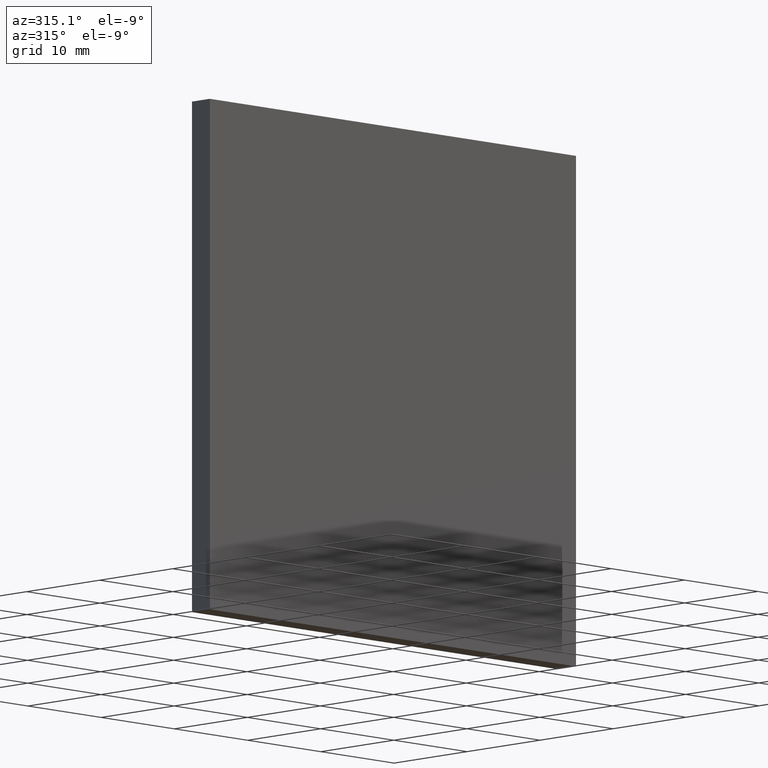
[diagram: clean part render]
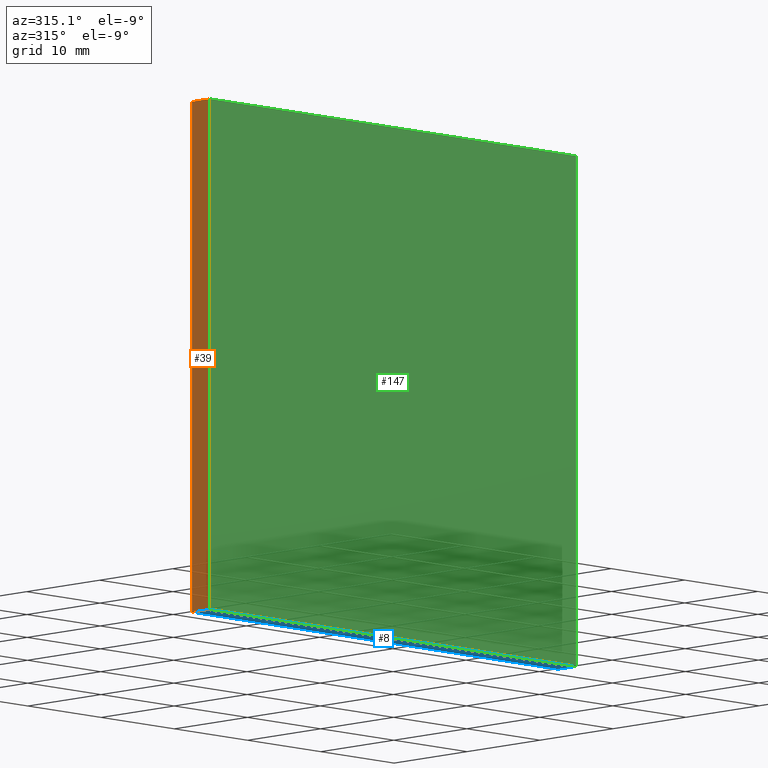
[diagram: same view with three faces highlighted in distinct colors, each labeled with its STEP entity id]
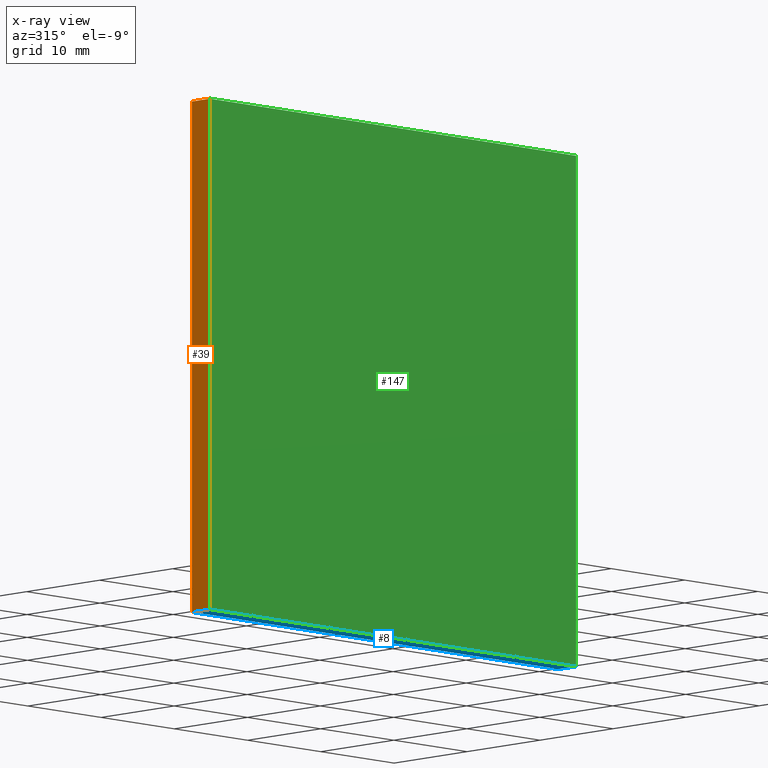
[diagram: x-ray of the same camera — body ghosted, the three highlighted faces saturated]
A machine part, auxiliary view with three faces highlighted in distinct colors.
The next image is the same camera in x-ray (body ghosted, the three faces saturated) — at least one of them is partly hidden behind the body in this view.
Their STEP definitions:

[orange] entity #39 — the highlighted planar face has unit normal (1, -0, 0).
#5 = LINE ( 'NONE', #97, #141 ) ;
#10 = CARTESIAN_POINT ( 'NONE',  ( -25.00000000000000000, 2.439999999999999900, -25.00000000000000000 ) ) ;
#16 = ORIENTED_EDGE ( 'NONE', *, *, #191, .F. ) ;
#24 = DIRECTION ( 'NONE',  ( -0.0000000000000000000, -1.000000000000000000, -0.0000000000000000000 ) ) ;
#25 = DIRECTION ( 'NONE',  ( -0.0000000000000000000, -1.000000000000000000, -0.0000000000000000000 ) ) ;
#27 = CARTESIAN_POINT ( 'NONE',  ( -25.00000000000000000, 0.0000000000000000000, -25.00000000000000000 ) ) ;
#31 = CARTESIAN_POINT ( 'NONE',  ( -25.00000000000000000, 2.439999999999999900, 25.00000000000000000 ) ) ;
#39 = ADVANCED_FACE ( 'NONE', ( #132 ), #143, .F. ) ;
#52 = ORIENTED_EDGE ( 'NONE', *, *, #166, .T. ) ;
#53 = CARTESIAN_POINT ( 'NONE',  ( -25.00000000000000000, 2.439999999999999900, 25.00000000000000000 ) ) ;
#68 = DIRECTION ( 'NONE',  ( -0.0000000000000000000, -0.0000000000000000000, 1.000000000000000000 ) ) ;
#71 = DIRECTION ( 'NONE',  ( 0.0000000000000000000, 0.0000000000000000000, -1.000000000000000000 ) ) ;
#75 = VERTEX_POINT ( 'NONE', #144 ) ;
#84 = DIRECTION ( 'NONE',  ( 1.000000000000000000, -0.0000000000000000000, 0.0000000000000000000 ) ) ;
#94 = VERTEX_POINT ( 'NONE', #10 ) ;
#95 = VERTEX_POINT ( 'NONE', #27 ) ;
#97 = CARTESIAN_POINT ( 'NONE',  ( -25.00000000000000000, 0.0000000000000000000, 25.00000000000000000 ) ) ;
#100 = CARTESIAN_POINT ( 'NONE',  ( -25.00000000000000000, 2.439999999999999900, -25.00000000000000000 ) ) ;
#102 = VECTOR ( 'NONE', #199, 1000.000000000000000 ) ;
#107 = AXIS2_PLACEMENT_3D ( 'NONE', #31, #84, #71 ) ;
#113 = ORIENTED_EDGE ( 'NONE', *, *, #153, .F. ) ;
#114 = LINE ( 'NONE', #130, #102 ) ;
#123 = ORIENTED_EDGE ( 'NONE', *, *, #182, .T. ) ;
#125 = VECTOR ( 'NONE', #24, 1000.000000000000000 ) ;
#130 = CARTESIAN_POINT ( 'NONE',  ( -25.00000000000000000, 2.439999999999999900, 25.00000000000000000 ) ) ;
#132 = FACE_OUTER_BOUND ( 'NONE', #158, .T. ) ;
#136 = VERTEX_POINT ( 'NONE', #196 ) ;
#137 = LINE ( 'NONE', #53, #185 ) ;
#141 = VECTOR ( 'NONE', #68, 1000.000000000000000 ) ;
#143 = PLANE ( 'NONE',  #107 ) ;
#144 = CARTESIAN_POINT ( 'NONE',  ( -25.00000000000000000, 2.439999999999999900, 25.00000000000000000 ) ) ;
#153 = EDGE_CURVE ( 'NONE', #94, #75, #114, .T. ) ;
#158 = EDGE_LOOP ( 'NONE', ( #52, #16, #113, #123 ) ) ;
#166 = EDGE_CURVE ( 'NONE', #95, #136, #5, .T. ) ;
#182 = EDGE_CURVE ( 'NONE', #94, #95, #183, .T. ) ;
#183 = LINE ( 'NONE', #100, #125 ) ;
#185 = VECTOR ( 'NONE', #25, 1000.000000000000000 ) ;
#191 = EDGE_CURVE ( 'NONE', #75, #136, #137, .T. ) ;
#196 = CARTESIAN_POINT ( 'NONE',  ( -25.00000000000000000, 0.0000000000000000000, 25.00000000000000000 ) ) ;
#199 = DIRECTION ( 'NONE',  ( -0.0000000000000000000, -0.0000000000000000000, 1.000000000000000000 ) ) ;

[blue] entity #8 — the highlighted planar face has unit normal (0, 0, 1).
#1 = ORIENTED_EDGE ( 'NONE', *, *, #182, .F. ) ;
#3 = CARTESIAN_POINT ( 'NONE',  ( -25.00000000000000000, 0.0000000000000000000, -25.00000000000000000 ) ) ;
#6 = CARTESIAN_POINT ( 'NONE',  ( -25.00000000000000000, 2.439999999999999900, -25.00000000000000000 ) ) ;
#8 = ADVANCED_FACE ( 'NONE', ( #172 ), #106, .F. ) ;
#10 = CARTESIAN_POINT ( 'NONE',  ( -25.00000000000000000, 2.439999999999999900, -25.00000000000000000 ) ) ;
#14 = CARTESIAN_POINT ( 'NONE',  ( 25.00000000000000000, 2.439999999999999900, -25.00000000000000000 ) ) ;
#15 = EDGE_CURVE ( 'NONE', #23, #95, #78, .T. ) ;
#17 = DIRECTION ( 'NONE',  ( -0.0000000000000000000, -1.000000000000000000, -0.0000000000000000000 ) ) ;
#23 = VERTEX_POINT ( 'NONE', #180 ) ;
#24 = DIRECTION ( 'NONE',  ( -0.0000000000000000000, -1.000000000000000000, -0.0000000000000000000 ) ) ;
#27 = CARTESIAN_POINT ( 'NONE',  ( -25.00000000000000000, 0.0000000000000000000, -25.00000000000000000 ) ) ;
#34 = DIRECTION ( 'NONE',  ( 1.000000000000000000, 0.0000000000000000000, -0.0000000000000000000 ) ) ;
#42 = ORIENTED_EDGE ( 'NONE', *, *, #15, .T. ) ;
#69 = LINE ( 'NONE', #181, #121 ) ;
#70 = EDGE_LOOP ( 'NONE', ( #42, #1, #184, #129 ) ) ;
#74 = VERTEX_POINT ( 'NONE', #118 ) ;
#78 = LINE ( 'NONE', #3, #88 ) ;
#81 = EDGE_CURVE ( 'NONE', #74, #23, #127, .T. ) ;
#88 = VECTOR ( 'NONE', #133, 1000.000000000000000 ) ;
#92 = DIRECTION ( 'NONE',  ( 0.0000000000000000000, 0.0000000000000000000, 1.000000000000000000 ) ) ;
#94 = VERTEX_POINT ( 'NONE', #10 ) ;
#95 = VERTEX_POINT ( 'NONE', #27 ) ;
#96 = AXIS2_PLACEMENT_3D ( 'NONE', #6, #92, #34 ) ;
#100 = CARTESIAN_POINT ( 'NONE',  ( -25.00000000000000000, 2.439999999999999900, -25.00000000000000000 ) ) ;
#106 = PLANE ( 'NONE',  #96 ) ;
#111 = EDGE_CURVE ( 'NONE', #74, #94, #69, .T. ) ;
#118 = CARTESIAN_POINT ( 'NONE',  ( 25.00000000000000000, 2.439999999999999900, -25.00000000000000000 ) ) ;
#121 = VECTOR ( 'NONE', #195, 1000.000000000000000 ) ;
#125 = VECTOR ( 'NONE', #24, 1000.000000000000000 ) ;
#127 = LINE ( 'NONE', #14, #140 ) ;
#129 = ORIENTED_EDGE ( 'NONE', *, *, #81, .T. ) ;
#133 = DIRECTION ( 'NONE',  ( -1.000000000000000000, -0.0000000000000000000, -0.0000000000000000000 ) ) ;
#140 = VECTOR ( 'NONE', #17, 1000.000000000000000 ) ;
#172 = FACE_OUTER_BOUND ( 'NONE', #70, .T. ) ;
#180 = CARTESIAN_POINT ( 'NONE',  ( 25.00000000000000000, 0.0000000000000000000, -25.00000000000000000 ) ) ;
#181 = CARTESIAN_POINT ( 'NONE',  ( -25.00000000000000000, 2.439999999999999900, -25.00000000000000000 ) ) ;
#182 = EDGE_CURVE ( 'NONE', #94, #95, #183, .T. ) ;
#183 = LINE ( 'NONE', #100, #125 ) ;
#184 = ORIENTED_EDGE ( 'NONE', *, *, #111, .F. ) ;
#195 = DIRECTION ( 'NONE',  ( -1.000000000000000000, -0.0000000000000000000, -0.0000000000000000000 ) ) ;

[green] entity #147 — the highlighted planar face has unit normal (0, -1, 0).
#3 = CARTESIAN_POINT ( 'NONE',  ( -25.00000000000000000, 0.0000000000000000000, -25.00000000000000000 ) ) ;
#5 = LINE ( 'NONE', #97, #141 ) ;
#7 = VECTOR ( 'NONE', #28, 1000.000000000000000 ) ;
#12 = PLANE ( 'NONE',  #49 ) ;
#15 = EDGE_CURVE ( 'NONE', #23, #95, #78, .T. ) ;
#23 = VERTEX_POINT ( 'NONE', #180 ) ;
#27 = CARTESIAN_POINT ( 'NONE',  ( -25.00000000000000000, 0.0000000000000000000, -25.00000000000000000 ) ) ;
#28 = DIRECTION ( 'NONE',  ( 0.0000000000000000000, 0.0000000000000000000, -1.000000000000000000 ) ) ;
#46 = CARTESIAN_POINT ( 'NONE',  ( 25.00000000000000000, 0.0000000000000000000, 25.00000000000000000 ) ) ;
#49 = AXIS2_PLACEMENT_3D ( 'NONE', #67, #159, #164 ) ;
#56 = VECTOR ( 'NONE', #61, 1000.000000000000000 ) ;
#61 = DIRECTION ( 'NONE',  ( 1.000000000000000000, 0.0000000000000000000, 0.0000000000000000000 ) ) ;
#62 = VERTEX_POINT ( 'NONE', #46 ) ;
#66 = CARTESIAN_POINT ( 'NONE',  ( 25.00000000000000000, 0.0000000000000000000, 25.00000000000000000 ) ) ;
#67 = CARTESIAN_POINT ( 'NONE',  ( 0.0000000000000000000, 0.0000000000000000000, 0.0000000000000000000 ) ) ;
#68 = DIRECTION ( 'NONE',  ( -0.0000000000000000000, -0.0000000000000000000, 1.000000000000000000 ) ) ;
#73 = EDGE_CURVE ( 'NONE', #62, #23, #168, .T. ) ;
#78 = LINE ( 'NONE', #3, #88 ) ;
#82 = CARTESIAN_POINT ( 'NONE',  ( -25.00000000000000000, 0.0000000000000000000, 25.00000000000000000 ) ) ;
#83 = EDGE_LOOP ( 'NONE', ( #192, #189, #93, #151 ) ) ;
#87 = FACE_OUTER_BOUND ( 'NONE', #83, .T. ) ;
#88 = VECTOR ( 'NONE', #133, 1000.000000000000000 ) ;
#93 = ORIENTED_EDGE ( 'NONE', *, *, #166, .F. ) ;
#95 = VERTEX_POINT ( 'NONE', #27 ) ;
#97 = CARTESIAN_POINT ( 'NONE',  ( -25.00000000000000000, 0.0000000000000000000, 25.00000000000000000 ) ) ;
#133 = DIRECTION ( 'NONE',  ( -1.000000000000000000, -0.0000000000000000000, -0.0000000000000000000 ) ) ;
#136 = VERTEX_POINT ( 'NONE', #196 ) ;
#141 = VECTOR ( 'NONE', #68, 1000.000000000000000 ) ;
#145 = LINE ( 'NONE', #82, #56 ) ;
#147 = ADVANCED_FACE ( 'NONE', ( #87 ), #12, .T. ) ;
#151 = ORIENTED_EDGE ( 'NONE', *, *, #15, .F. ) ;
#155 = EDGE_CURVE ( 'NONE', #136, #62, #145, .T. ) ;
#159 = DIRECTION ( 'NONE',  ( 0.0000000000000000000, -1.000000000000000000, 0.0000000000000000000 ) ) ;
#164 = DIRECTION ( 'NONE',  ( 0.0000000000000000000, -0.0000000000000000000, -1.000000000000000000 ) ) ;
#166 = EDGE_CURVE ( 'NONE', #95, #136, #5, .T. ) ;
#168 = LINE ( 'NONE', #66, #7 ) ;
#180 = CARTESIAN_POINT ( 'NONE',  ( 25.00000000000000000, 0.0000000000000000000, -25.00000000000000000 ) ) ;
#189 = ORIENTED_EDGE ( 'NONE', *, *, #155, .F. ) ;
#192 = ORIENTED_EDGE ( 'NONE', *, *, #73, .F. ) ;
#196 = CARTESIAN_POINT ( 'NONE',  ( -25.00000000000000000, 0.0000000000000000000, 25.00000000000000000 ) ) ;